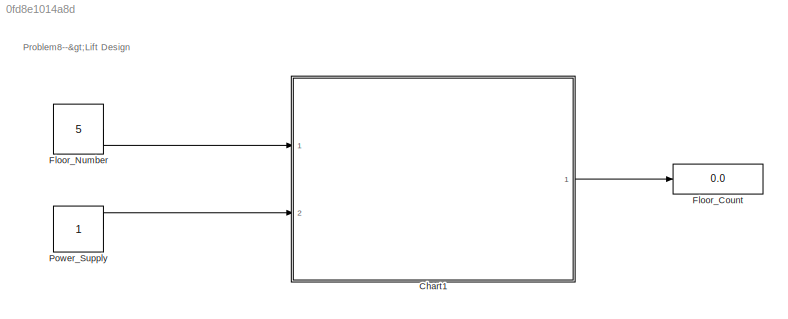
MODEL slx_0fd8e1014a8d
KIND model
CONFIG AbsTol = auto
CONFIG EnableMultiTasking = off
CONFIG FixedStep = auto
CONFIG MaxStep = auto
CONFIG MinStep = auto
CONFIG RelTol = 1e-3
CONFIG SampleTimeConstraint = Unconstrained
CONFIG Solver = VariableStepAuto
CONFIG SolverName = VariableStepAuto
CONFIG StartTime = 0.0
CONFIG StopTime = 10.0
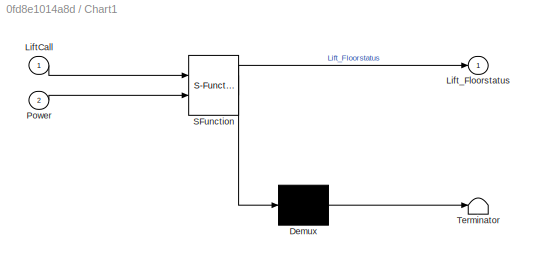
BLOCK [SubSystem] Chart1
  ErrorFcn = Stateflow.Translate.translate
  PermitHierarchicalResolution = ExplicitOnly
  Ports = [2, 1]
  RequestExecContextInheritance = off
  SFBlockType = Chart
  TreatAsAtomicUnit = on
BLOCK [Demux] Chart1/ Demux 
  Outputs = 1
  Ports = [1, 1]
BLOCK [S-Function] Chart1/ SFunction 
  EnableBusSupport = on
  FunctionName = sf_sfun
  PortCounts = [2 2]
  Ports = [2, 2]
  SFcnIsStateOwnerBlock = off
  SFunctionDeploymentMode = off
  Tag = Stateflow S-Function 1
BLOCK [Terminator] Chart1/ Terminator 
BLOCK [Inport] Chart1/LiftCall
BLOCK [Outport] Chart1/Lift_Floorstatus
BLOCK [Inport] Chart1/Power
  Port = 2
BLOCK [Display] Floor_Count
  Decimation = 1
  Ports = [1]
BLOCK [Constant] Floor_Number
  Value = 5
BLOCK [Constant] Power_Supply
ANNOTATION (root): Problem8-->Lift Design
LINE Chart1:1 -> Floor_Count:1
LINE Floor_Number:1 -> Chart1:1
LINE Power_Supply:1 -> Chart1:2
CHART Chart1 states=8 transitions=9
  STATE_LABEL 'PowerControl'
  STATE_LABEL 'Idle\nLift_Floorstatus=0;'
  STATE_LABEL 'Active'
  STATE_LABEL '{Lift_Floorstatus=1;}'
  STATE_LABEL '[Power ==1]'
  STATE_LABEL '[Power==0]'
  STATE_LABEL 'Idle\nLift_Floorstatus=0;'
  STATE_LABEL 'Active'
  STATE_LABEL 'Lift_Status\n\n'
  STATE_LABEL 'Start\n'
  STATE_LABEL 'Down\ndu:Lift_Floorstatus=Lift_Floorstatus-1;'
  STATE_LABEL 'Up\ndu:Lift_Floorstatus=Lift_Floorstatus+1;'
  STATE_LABEL 'Wait\n'
  STATE_LABEL '[LiftCall<Lift_Floorstatus]'
  STATE_LABEL '[LiftCall>Lift_Floorstatus]'
  STATE_LABEL '[Lift_Floorstatus==LiftCall]'
  STATE_LABEL 'after(8,sec)'
  STATE_LABEL '[Lift_Floorstatus==LiftCall]'
  STATE_LABEL 'Start\n'
  STATE_LABEL 'Down\ndu:Lift_Floorstatus=Lift_Floorstatus-1;'
  STATE_LABEL 'Up\ndu:Lift_Floorstatus=Lift_Floorstatus+1;'
  STATE_LABEL 'Wait\n'
CHART  states=0 transitions=0
